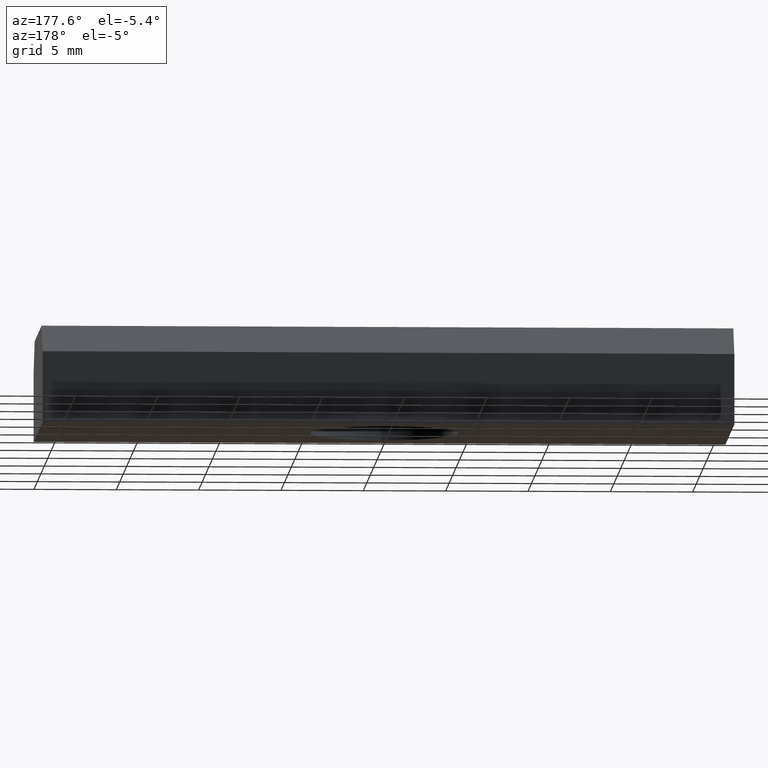
[diagram: clean part render]
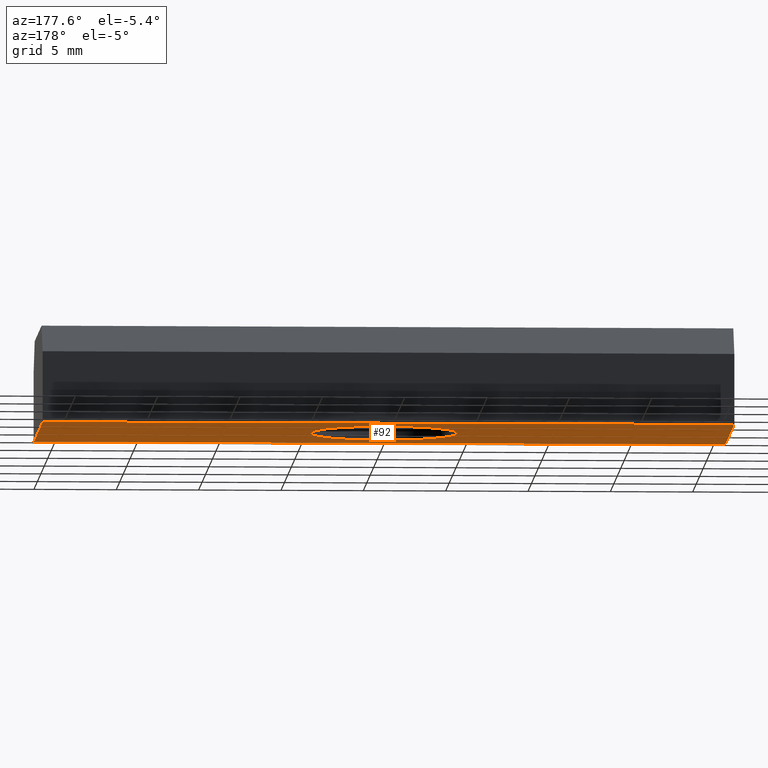
[diagram: same view with one face highlighted and labeled with its STEP entity id]
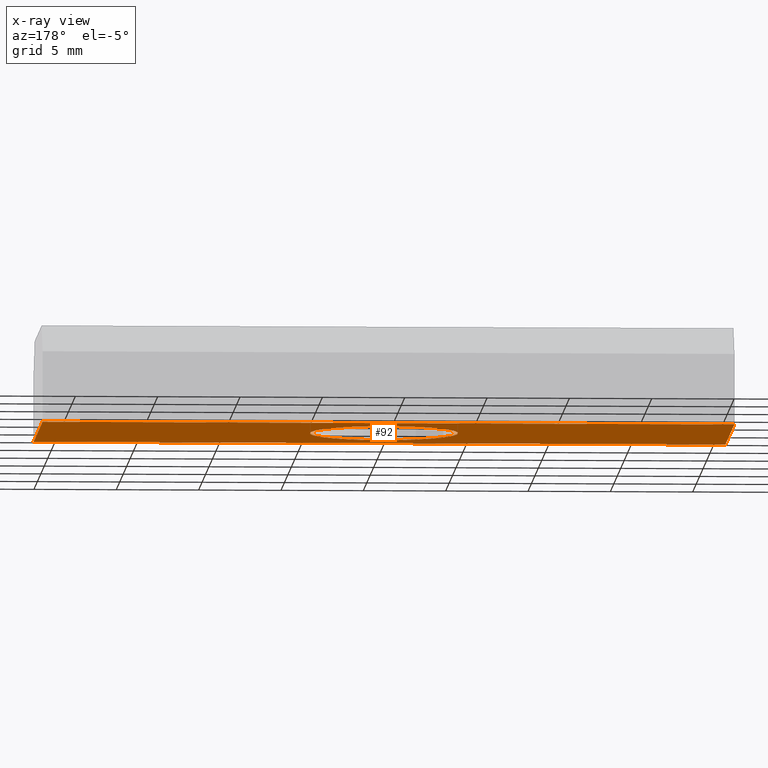
[diagram: x-ray of the same camera — body ghosted, the highlighted face saturated]
A machine part, auxiliary view. The second image highlights one B-rep face of the part: STEP entity #92.
The next image is the same camera in x-ray: the body ghosted, the highlighted face saturated — about 0% of this face is hidden behind the body in this view.
In plain terms, the highlighted planar face has unit normal (0, 0, -1).
Its self-contained STEP definition (entity closure, byte-faithful):
#9=CARTESIAN_POINT('',(-21.000000000084128,-6.499999999974079,-1.776357E-015));
#10=VERTEX_POINT('',#9);
#17=CARTESIAN_POINT('',(20.999999999915872,-6.499999999974079,-1.776357E-015));
#18=VERTEX_POINT('',#17);
#19=CARTESIAN_POINT('',(-21.000000000084128,-6.499999999974079,-1.776357E-015));
#20=DIRECTION('',(1.0,0.0,0.0));
#21=VECTOR('',#20,42.0);
#22=LINE('',#19,#21);
#23=EDGE_CURVE('',#10,#18,#22,.T.);
#42=CARTESIAN_POINT('',(-21.000000000084128,-6.499999999974079,-1.776357E-015));
#43=DIRECTION('',(0.0,0.0,-1.0));
#44=DIRECTION('',(0.0,1.0,0.0));
#45=AXIS2_PLACEMENT_3D('',#42,#43,#44);
#46=PLANE('',#45);
#47=CARTESIAN_POINT('',(-21.000000000084128,6.499999999974079,-1.776357E-015));
#48=VERTEX_POINT('',#47);
#49=CARTESIAN_POINT('',(-21.000000000084128,-6.499999999974079,-1.776357E-015));
#50=DIRECTION('',(0.0,1.0,0.0));
#51=VECTOR('',#50,12.999999999948013);
#52=LINE('',#49,#51);
#53=EDGE_CURVE('',#10,#48,#52,.T.);
#54=ORIENTED_EDGE('',*,*,#53,.T.);
#55=CARTESIAN_POINT('',(20.999999999915872,6.499999999974079,-1.776357E-015));
#56=VERTEX_POINT('',#55);
#57=CARTESIAN_POINT('',(-21.000000000084128,6.499999999974079,-1.776357E-015));
#58=DIRECTION('',(1.0,0.0,0.0));
#59=VECTOR('',#58,42.0);
#60=LINE('',#57,#59);
#61=EDGE_CURVE('',#48,#56,#60,.T.);
#62=ORIENTED_EDGE('',*,*,#61,.T.);
#63=CARTESIAN_POINT('',(20.999999999915872,-6.499999999974079,-1.776357E-015));
#64=DIRECTION('',(0.0,1.0,0.0));
#65=VECTOR('',#64,12.999999999948013);
#66=LINE('',#63,#65);
#67=EDGE_CURVE('',#18,#56,#66,.T.);
#68=ORIENTED_EDGE('',*,*,#67,.F.);
#69=ORIENTED_EDGE('',*,*,#23,.F.);
#70=EDGE_LOOP('',(#54,#62,#68,#69));
#71=FACE_OUTER_BOUND('',#70,.T.);
#72=CARTESIAN_POINT('',(0.0,-4.500000000000000,-8.881784E-016));
#73=VERTEX_POINT('',#72);
#74=CARTESIAN_POINT('',(0.0,4.500000000000000,0.0));
#75=VERTEX_POINT('',#74);
#76=CARTESIAN_POINT('',(0.0,0.0,0.0));
#77=DIRECTION('',(-6.123234E-017,0.0,1.0));
#78=DIRECTION('',(0.0,-1.0,0.0));
#79=AXIS2_PLACEMENT_3D('',#76,#77,#78);
#80=CIRCLE('',#79,4.500000000000000);
#81=EDGE_CURVE('',#73,#75,#80,.T.);
#82=ORIENTED_EDGE('',*,*,#81,.T.);
#83=CARTESIAN_POINT('',(0.0,0.0,0.0));
#84=DIRECTION('',(-6.123234E-017,0.0,1.0));
#85=DIRECTION('',(0.0,-1.0,0.0));
#86=AXIS2_PLACEMENT_3D('',#83,#84,#85);
#87=CIRCLE('',#86,4.500000000000000);
#88=EDGE_CURVE('',#75,#73,#87,.T.);
#89=ORIENTED_EDGE('',*,*,#88,.T.);
#90=EDGE_LOOP('',(#82,#89));
#91=FACE_BOUND('',#90,.T.);
#92=ADVANCED_FACE('',(#71,#91),#46,.T.);